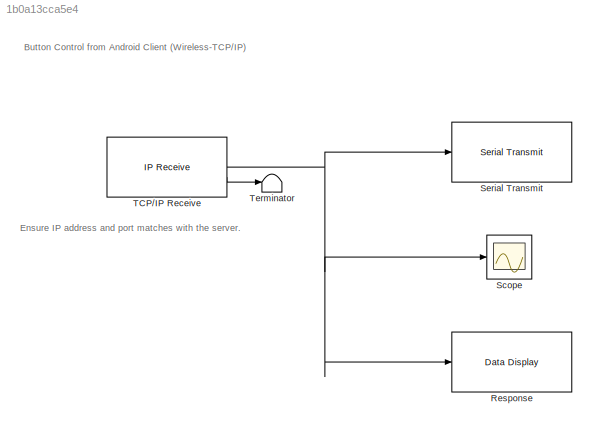
MODEL slx_1b0a13cca5e4
KIND model
CONFIG AbsTol = auto
CONFIG EnableMultiTasking = off
CONFIG FixedStep = auto
CONFIG MaxStep = auto
CONFIG MinStep = auto
CONFIG RelTol = 1e-3
CONFIG SampleTimeConstraint = Unconstrained
CONFIG SolverName = FixedStepAuto
CONFIG StartTime = 0.0
CONFIG StopTime = 10.0
BLOCK [Reference] Response  REF=androiduilib/Data Display
  SourceBlock = androiduilib/Data Display
  SourceType = codertarget.internal.androidDataDisplay
BLOCK [Scope] Scope
  Floating = off
  NumInputPorts = 1
  ScopeSpecificationString = Simulink.scopes.TimeScopeBlockCfg('CurrentConfiguration', extmgr.ConfigurationSet(extmgr.Configuration('Core','General UI',true),extmgr.Configuration('Core','Source UI',true),extmgr.Configuration('Sources','WiredSimulink',true),extmgr.Configuration('Visuals','Time Domain',true,'SerializedDisplays',{struct('MinYLimReal','-180','MaxYLimReal','180','YLabelReal','','MinYLimMag','0.00000','MaxYLimMag',...<+1375ch>
BLOCK [Reference] Serial Transmit  REF=androidcommunicationlib/Serial Transmit
  SourceBlock = androidcommunicationlib/Serial Transmit
  SourceType = codertarget.internal.androidSerialTransmit
BLOCK [Reference] TCP//IP Receive  REF=androidcommunicationlib/TCP//IP Receive
  SourceBlock = androidcommunicationlib/TCP//IP Receive
  SourceType = codertarget.internal.androidTCPReceive
BLOCK [Terminator] Terminator
ANNOTATION (root): Ensure IP address and port matches with the server.
ANNOTATION (root): Button Control from Android Client (Wireless-TCP/IP)
NET TCP//IP Receive:1 -> Response:1, Scope:1, Serial Transmit:1
LINE TCP//IP Receive:2 -> Terminator:1
note: NET lines group one-source signal fan-out (src -> all destinations, sorted); 1:1 wires keep LINE
